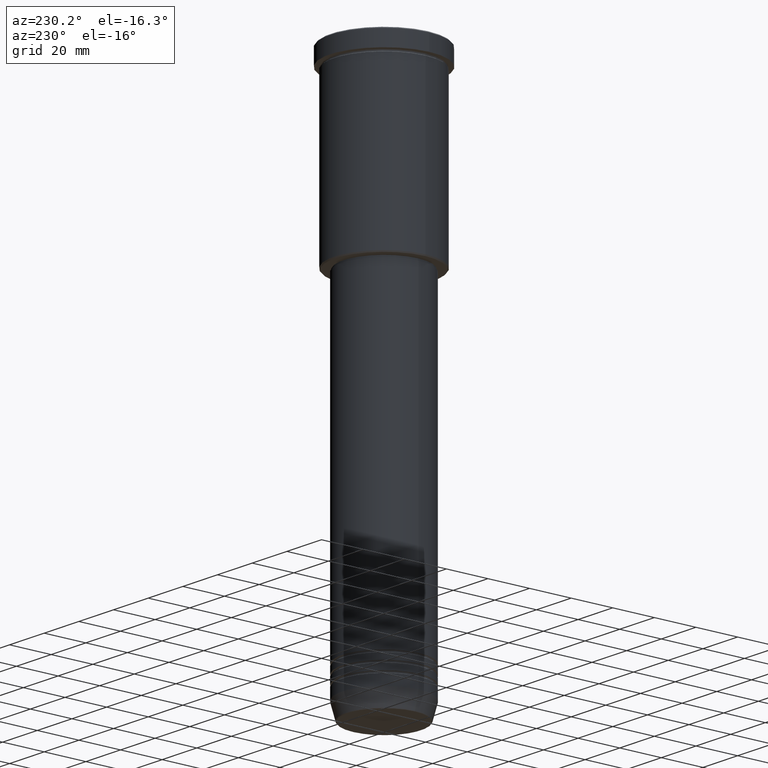
[diagram: clean part render]
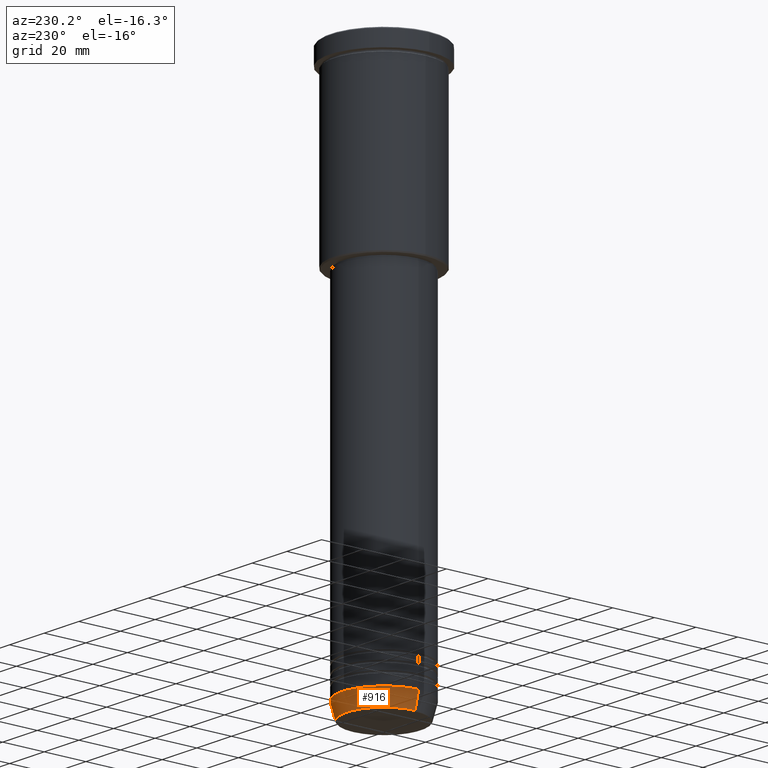
[diagram: same view with one face highlighted and labeled with its STEP entity id]
A machine part, auxiliary view. The second image highlights one B-rep face of the part: STEP entity #916.
In plain terms, the highlighted conical surface has half-angle 15 deg.
Its self-contained STEP definition (entity closure, byte-faithful):
#22 = DIRECTION ( 'NONE',  ( -0.000000000000000000, -0.000000000000000000, 1.000000000000000000 ) ) ;
#51 = CARTESIAN_POINT ( 'NONE',  ( 0.000000000000000000, 0.000000000000000000, -252.0000000000000000 ) ) ;
#79 = VERTEX_POINT ( 'NONE', #454 ) ;
#137 = ORIENTED_EDGE ( 'NONE', *, *, #374, .F. ) ;
#150 = DIRECTION ( 'NONE',  ( -0.2588190451025212391, 3.169619151431771721E-17, 0.9659258262890680902 ) ) ;
#181 = VERTEX_POINT ( 'NONE', #855 ) ;
#182 = DIRECTION ( 'NONE',  ( 0.2588190451025212391, 0.000000000000000000, 0.9659258262890680902 ) ) ;
#265 = CARTESIAN_POINT ( 'NONE',  ( -20.00000000000000355, 2.449293598294706907E-15, -252.0000000000000000 ) ) ;
#291 = VECTOR ( 'NONE', #150, 1000.000000000000114 ) ;
#356 = DIRECTION ( 'NONE',  ( 1.000000000000000000, 0.000000000000000000, 0.000000000000000000 ) ) ;
#374 = EDGE_CURVE ( 'NONE', #613, #181, #574, .T. ) ;
#384 = CARTESIAN_POINT ( 'NONE',  ( 20.00000000000000355, 0.000000000000000000, -252.0000000000000000 ) ) ;
#399 = DIRECTION ( 'NONE',  ( 1.000000000000000000, 0.000000000000000000, 0.000000000000000000 ) ) ;
#439 = AXIS2_PLACEMENT_3D ( 'NONE', #941, #22, #356 ) ;
#454 = CARTESIAN_POINT ( 'NONE',  ( 17.95570587970608045, 0.000000000000000000, -259.6294095225512706 ) ) ;
#507 = EDGE_CURVE ( 'NONE', #79, #613, #818, .T. ) ;
#517 = EDGE_LOOP ( 'NONE', ( #1163, #689, #137, #588 ) ) ;
#556 = CONICAL_SURFACE ( 'NONE', #596, 20.00000000000000355, 0.2617993877991499629 ) ;
#574 = CIRCLE ( 'NONE', #720, 20.00000000000000355 ) ;
#588 = ORIENTED_EDGE ( 'NONE', *, *, #507, .F. ) ;
#596 = AXIS2_PLACEMENT_3D ( 'NONE', #51, #1122, #399 ) ;
#601 = CARTESIAN_POINT ( 'NONE',  ( 0.000000000000000000, 0.000000000000000000, -252.0000000000000000 ) ) ;
#604 = VERTEX_POINT ( 'NONE', #831 ) ;
#613 = VERTEX_POINT ( 'NONE', #384 ) ;
#632 = CARTESIAN_POINT ( 'NONE',  ( 20.00000000000000355, 0.000000000000000000, -252.0000000000000000 ) ) ;
#689 = ORIENTED_EDGE ( 'NONE', *, *, #900, .T. ) ;
#715 = LINE ( 'NONE', #265, #291 ) ;
#720 = AXIS2_PLACEMENT_3D ( 'NONE', #601, #1157, #791 ) ;
#731 = EDGE_CURVE ( 'NONE', #79, #604, #1024, .T. ) ;
#791 = DIRECTION ( 'NONE',  ( 1.000000000000000000, 0.000000000000000000, 0.000000000000000000 ) ) ;
#818 = LINE ( 'NONE', #632, #1097 ) ;
#831 = CARTESIAN_POINT ( 'NONE',  ( -17.95570587970608045, 2.324116685748021371E-15, -259.6294095225512706 ) ) ;
#855 = CARTESIAN_POINT ( 'NONE',  ( -20.00000000000000355, 2.449293598294706907E-15, -252.0000000000000000 ) ) ;
#871 = FACE_OUTER_BOUND ( 'NONE', #517, .T. ) ;
#900 = EDGE_CURVE ( 'NONE', #604, #181, #715, .T. ) ;
#916 = ADVANCED_FACE ( 'NONE', ( #871 ), #556, .T. ) ;
#941 = CARTESIAN_POINT ( 'NONE',  ( 0.000000000000000000, 0.000000000000000000, -259.6294095225512706 ) ) ;
#1024 = CIRCLE ( 'NONE', #439, 17.95570587970608045 ) ;
#1097 = VECTOR ( 'NONE', #182, 1000.000000000000114 ) ;
#1122 = DIRECTION ( 'NONE',  ( -0.000000000000000000, -0.000000000000000000, 1.000000000000000000 ) ) ;
#1157 = DIRECTION ( 'NONE',  ( -0.000000000000000000, -0.000000000000000000, 1.000000000000000000 ) ) ;
#1163 = ORIENTED_EDGE ( 'NONE', *, *, #731, .T. ) ;